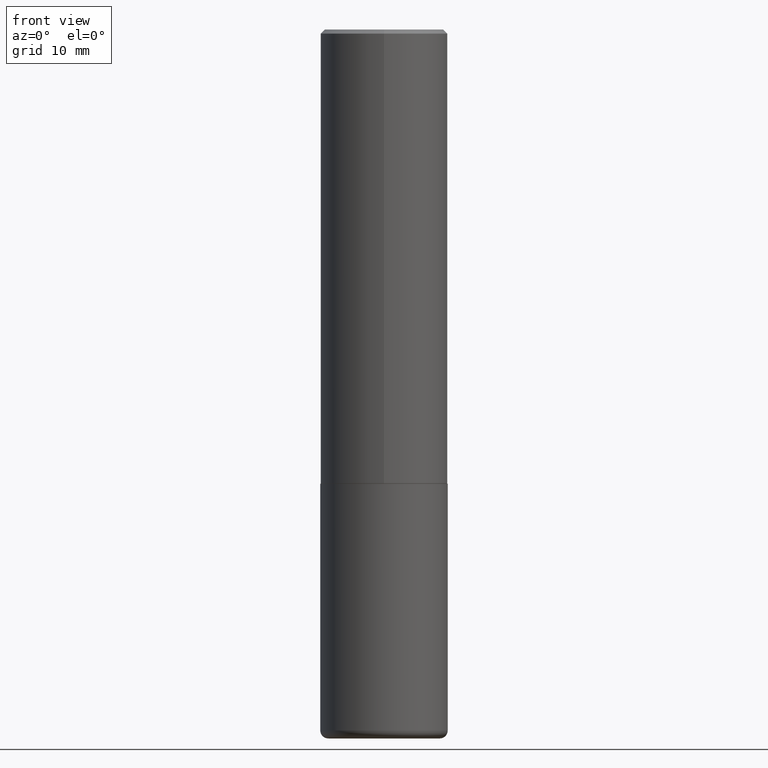
[diagram: clean part render]
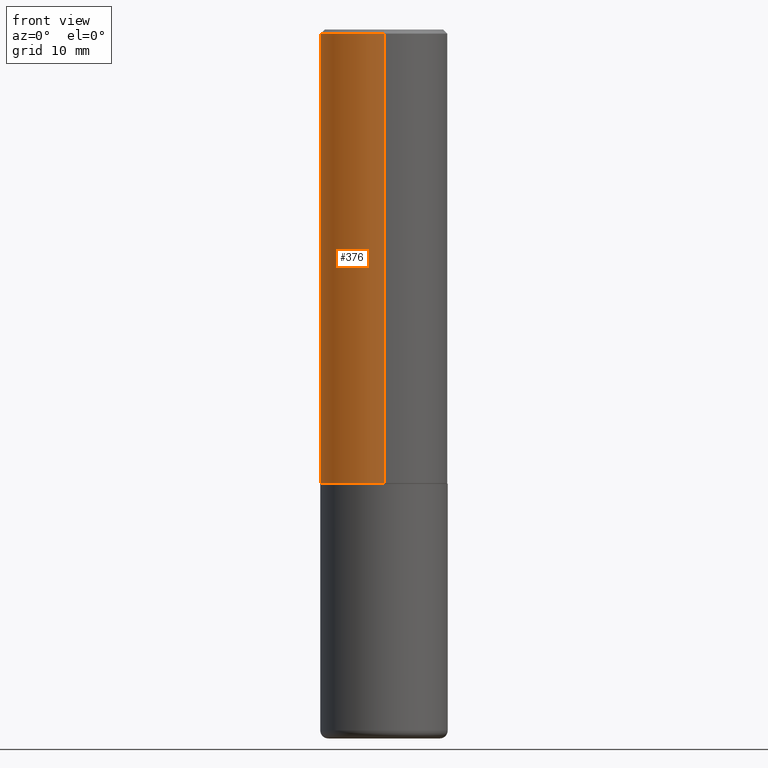
[diagram: same view with one face highlighted and labeled with its STEP entity id]
A machine part, front view. The second image highlights one B-rep face of the part: STEP entity #376.
In plain terms, the highlighted cylindrical surface (partial cylindrical patch) has radius 7.9997 mm, axis along (-0, 0, 1).
Its self-contained STEP definition (entity closure, byte-faithful):
#8 = CYLINDRICAL_SURFACE ( 'NONE', #163, 0.3149500000000000632 ) ;
#18 = ORIENTED_EDGE ( 'NONE', *, *, #173, .F. ) ;
#20 = DIRECTION ( 'NONE',  ( -6.982962677686265922E-15, -1.000000000000000000, 3.469564049740290009E-15 ) ) ;
#40 = DIRECTION ( 'NONE',  ( -6.982962677686265922E-15, -1.000000000000000000, 3.490574506274840456E-15 ) ) ;
#47 = DIRECTION ( 'NONE',  ( -2.446102043983075148E-29, 3.490574506274840456E-15, 1.000000000000000000 ) ) ;
#49 = ORIENTED_EDGE ( 'NONE', *, *, #130, .F. ) ;
#52 = CARTESIAN_POINT ( 'NONE',  ( -2.160713844398142179E-15, -0.3149499999999999522, -0.01999999999999896652 ) ) ;
#57 = CARTESIAN_POINT ( 'NONE',  ( 2.237854346276435590E-15, 0.3149500000000000632, -1.099356440751261260E-15 ) ) ;
#68 = FACE_OUTER_BOUND ( 'NONE', #249, .T. ) ;
#77 = CIRCLE ( 'NONE', #206, 0.3149500000000002853 ) ;
#97 = VERTEX_POINT ( 'NONE', #371 ) ;
#128 = CARTESIAN_POINT ( 'NONE',  ( 2.199284095337288688E-15, 0.3149499999999997857, -0.02000000000000116962 ) ) ;
#130 = EDGE_CURVE ( 'NONE', #272, #285, #245, .T. ) ;
#136 = AXIS2_PLACEMENT_3D ( 'NONE', #338, #47, #246 ) ;
#155 = DIRECTION ( 'NONE',  ( -2.446102043983075148E-29, 3.490574506274840456E-15, 1.000000000000000000 ) ) ;
#163 = AXIS2_PLACEMENT_3D ( 'NONE', #165, #232, #40 ) ;
#165 = CARTESIAN_POINT ( 'NONE',  ( 0.000000000000000000, 0.000000000000000000, 0.000000000000000000 ) ) ;
#173 = EDGE_CURVE ( 'NONE', #360, #272, #268, .T. ) ;
#184 = DIRECTION ( 'NONE',  ( -2.446102043983075148E-29, 3.490574506274840456E-15, 1.000000000000000000 ) ) ;
#206 = AXIS2_PLACEMENT_3D ( 'NONE', #228, #354, #20 ) ;
#217 = LINE ( 'NONE', #377, #255 ) ;
#228 = CARTESIAN_POINT ( 'NONE',  ( 5.486851494858434265E-29, -7.829707675025093274E-15, -2.243099999999999206 ) ) ;
#232 = DIRECTION ( 'NONE',  ( -2.446102043983075148E-29, 3.490574506274840456E-15, 1.000000000000000000 ) ) ;
#233 = ORIENTED_EDGE ( 'NONE', *, *, #306, .T. ) ;
#245 = CIRCLE ( 'NONE', #136, 0.3149499999999998967 ) ;
#246 = DIRECTION ( 'NONE',  ( -6.982962677686264344E-15, -1.000000000000000000, 3.496670018878890283E-15 ) ) ;
#249 = EDGE_LOOP ( 'NONE', ( #18, #233, #264, #49 ) ) ;
#255 = VECTOR ( 'NONE', #184, 39.37007874015748143 ) ;
#264 = ORIENTED_EDGE ( 'NONE', *, *, #287, .T. ) ;
#268 = LINE ( 'NONE', #57, #380 ) ;
#272 = VERTEX_POINT ( 'NONE', #128 ) ;
#285 = VERTEX_POINT ( 'NONE', #52 ) ;
#287 = EDGE_CURVE ( 'NONE', #97, #285, #217, .T. ) ;
#306 = EDGE_CURVE ( 'NONE', #360, #97, #77, .T. ) ;
#338 = CARTESIAN_POINT ( 'NONE',  ( 4.892204087966167602E-31, -6.981149012549705614E-17, -0.02000000000000006981 ) ) ;
#354 = DIRECTION ( 'NONE',  ( -2.446102043983075148E-29, 3.490574506274840456E-15, 1.000000000000000000 ) ) ;
#360 = VERTEX_POINT ( 'NONE', #385 ) ;
#371 = CARTESIAN_POINT ( 'NONE',  ( -2.199284095337236228E-15, -0.3149500000000081124, -2.243099999999998317 ) ) ;
#376 = ADVANCED_FACE ( 'NONE', ( #68 ), #8, .T. ) ;
#377 = CARTESIAN_POINT ( 'NONE',  ( -2.199284095337289871E-15, -0.3149500000000000632, 1.099356440751261260E-15 ) ) ;
#380 = VECTOR ( 'NONE', #155, 39.37007874015748143 ) ;
#385 = CARTESIAN_POINT ( 'NONE',  ( 2.237854346276463595E-15, 0.3149499999999924027, -2.243100000000000538 ) ) ;